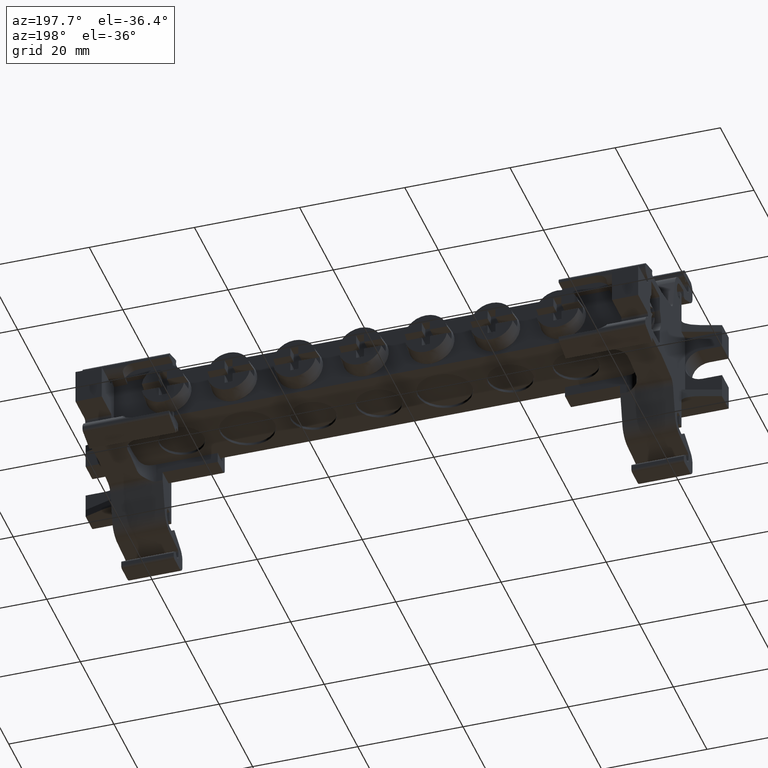
[diagram: clean part render]
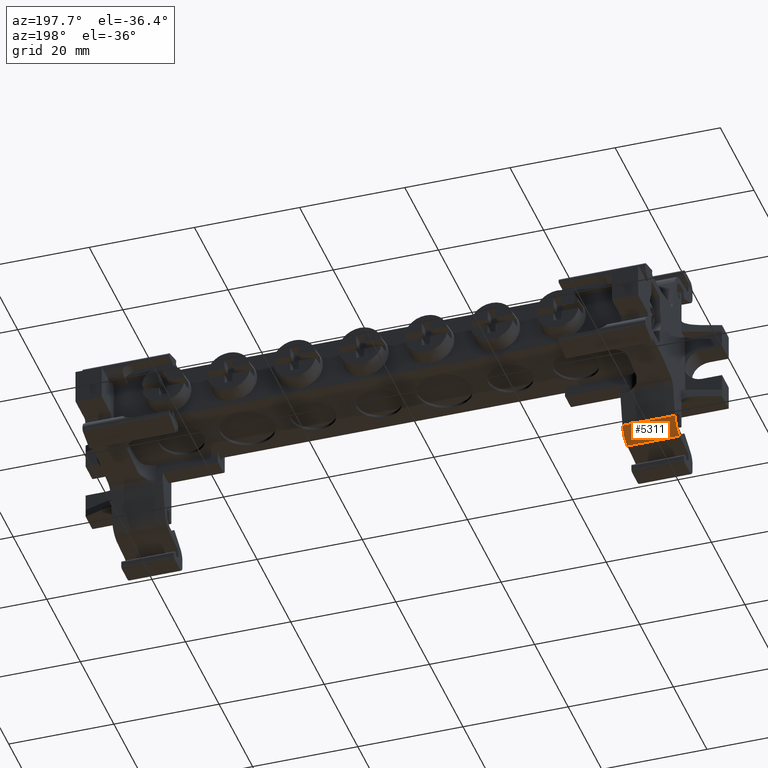
[diagram: same view with one face highlighted and labeled with its STEP entity id]
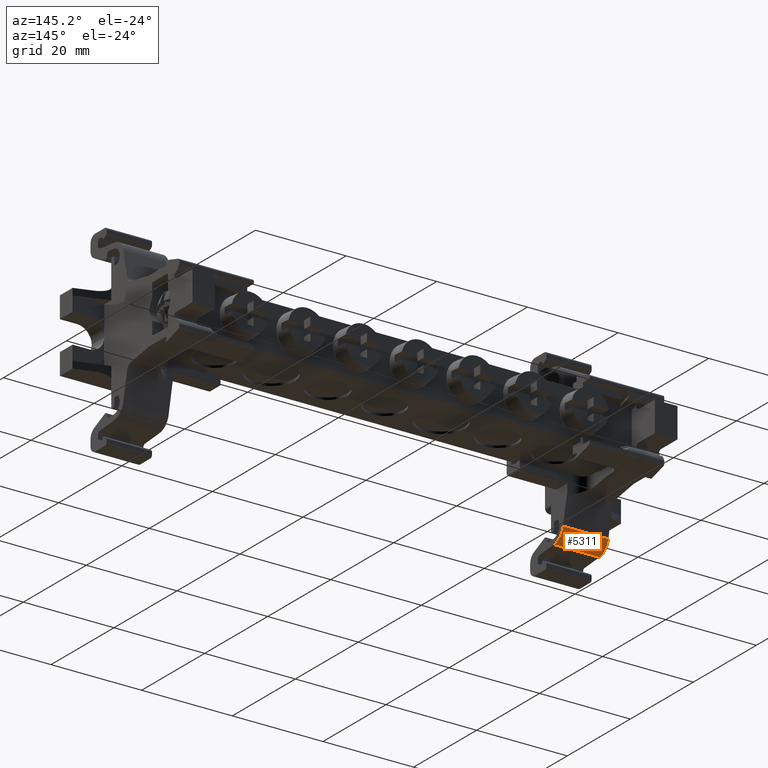
[diagram: same view with one face highlighted and labeled with its STEP entity id]
A machine part, auxiliary view. The second image highlights one B-rep face of the part: STEP entity #5311.
A second angle (auxiliary view) of the same face is appended — the face is thin or edge-on in the first view.
In plain terms, the highlighted cylindrical surface (edge-blend (fillet) strip) has radius 3.2 mm, axis along (-1, 0, -0).
Its self-contained STEP definition (entity closure, byte-faithful):
#620 = CIRCLE ( 'NONE', #653, 3.199999923352063300 ) ;
#643 = VECTOR ( 'NONE', #6055, 1000.000000000000000 ) ;
#653 = AXIS2_PLACEMENT_3D ( 'NONE', #6102, #6084, #6067 ) ;
#751 = VECTOR ( 'NONE', #6369, 1000.000000000000000 ) ;
#1954 = EDGE_CURVE ( 'NONE', #2819, #3071, #6027, .T. ) ;
#1972 = EDGE_CURVE ( 'NONE', #3071, #3049, #620, .T. ) ;
#2059 = EDGE_CURVE ( 'NONE', #3049, #2774, #6358, .T. ) ;
#2774 = VERTEX_POINT ( 'NONE', #7187 ) ;
#2819 = VERTEX_POINT ( 'NONE', #8184 ) ;
#3049 = VERTEX_POINT ( 'NONE', #8394 ) ;
#3071 = VERTEX_POINT ( 'NONE', #8447 ) ;
#5113 = EDGE_LOOP ( 'NONE', ( #15308, #15276, #15312, #15256 ) ) ;
#5311 = ADVANCED_FACE ( 'NONE', ( #7922 ), #7943, .T. ) ;
#6027 = LINE ( 'NONE', #6035, #643 ) ;
#6035 = CARTESIAN_POINT ( 'NONE',  ( -34.51839120287508700, 44.92394467542316500, 20.44912216232952700 ) ) ;
#6055 = DIRECTION ( 'NONE',  ( -1.000000000000000000, 7.897574987183420400E-015, -3.511194211457205400E-015 ) ) ;
#6067 = DIRECTION ( 'NONE',  ( -8.673617587638689600E-015, -1.000000000000000000, 0.0000000000000000000 ) ) ;
#6084 = DIRECTION ( 'NONE',  ( 1.000000000000000000, -7.897574987183420400E-015, 3.511194211457205400E-015 ) ) ;
#6102 = CARTESIAN_POINT ( 'NONE',  ( -61.95269769582411400, 44.64504681959606800, 23.63694516486080500 ) ) ;
#6358 = LINE ( 'NONE', #6361, #751 ) ;
#6361 = CARTESIAN_POINT ( 'NONE',  ( -46.60348547699045700, 47.79345559758338900, 23.06465006952617000 ) ) ;
#6369 = DIRECTION ( 'NONE',  ( 1.000000000000000000, -6.873352069277832500E-015, 1.425906613307834300E-015 ) ) ;
#7187 = CARTESIAN_POINT ( 'NONE',  ( -51.95269769582411400, 47.79345559758388600, 23.06465006952838700 ) ) ;
#7922 = FACE_OUTER_BOUND ( 'NONE', #5113, .T. ) ;
#7943 = CYLINDRICAL_SURFACE ( 'NONE', #18473, 3.199999923352063300 ) ;
#7947 = DIRECTION ( 'NONE',  ( -1.000000000000000000, 7.897574987183420400E-015, -3.511194211457205400E-015 ) ) ;
#7963 = CARTESIAN_POINT ( 'NONE',  ( -34.51839120287510100, 44.64504681959584800, 23.63694516486090100 ) ) ;
#7969 = DIRECTION ( 'NONE',  ( -8.673617587638689600E-015, -1.000000000000000000, 0.0000000000000000000 ) ) ;
#8184 = CARTESIAN_POINT ( 'NONE',  ( -51.95269769582412800, 44.92394467208340800, 20.44912216203732000 ) ) ;
#8394 = CARTESIAN_POINT ( 'NONE',  ( -61.95269769582407800, 47.79345559758400000, 23.06465006952858200 ) ) ;
#8447 = CARTESIAN_POINT ( 'NONE',  ( -61.95269769582409900, 44.92394467208347900, 20.44912216203731600 ) ) ;
#13428 = CARTESIAN_POINT ( 'NONE',  ( -51.95269769582414200, 44.64504681959599000, 23.63694516486084000 ) ) ;
#13452 = DIRECTION ( 'NONE',  ( -1.000000000000000000, 7.897574987183420400E-015, -3.511194211457205400E-015 ) ) ;
#13463 = DIRECTION ( 'NONE',  ( -8.673617587638689600E-015, -1.000000000000000000, 0.0000000000000000000 ) ) ;
#15256 = ORIENTED_EDGE ( 'NONE', *, *, #2059, .T. ) ;
#15276 = ORIENTED_EDGE ( 'NONE', *, *, #1954, .T. ) ;
#15308 = ORIENTED_EDGE ( 'NONE', *, *, #15895, .T. ) ;
#15312 = ORIENTED_EDGE ( 'NONE', *, *, #1972, .T. ) ;
#15895 = EDGE_CURVE ( 'NONE', #2774, #2819, #18405, .T. ) ;
#18405 = CIRCLE ( 'NONE', #18406, 3.199999923352063300 ) ;
#18406 = AXIS2_PLACEMENT_3D ( 'NONE', #13428, #13452, #13463 ) ;
#18473 = AXIS2_PLACEMENT_3D ( 'NONE', #7963, #7947, #7969 ) ;